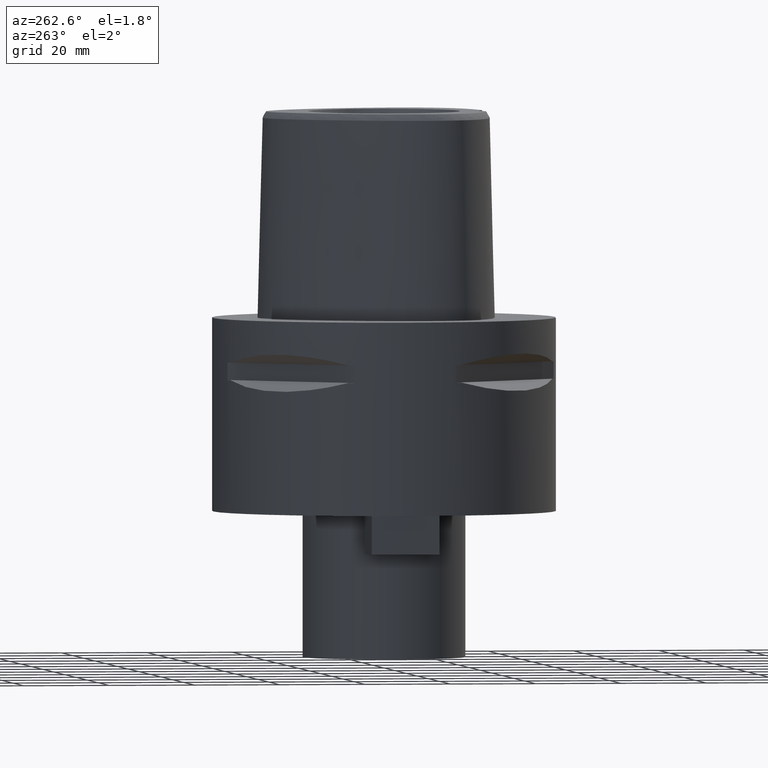
[diagram: clean part render]
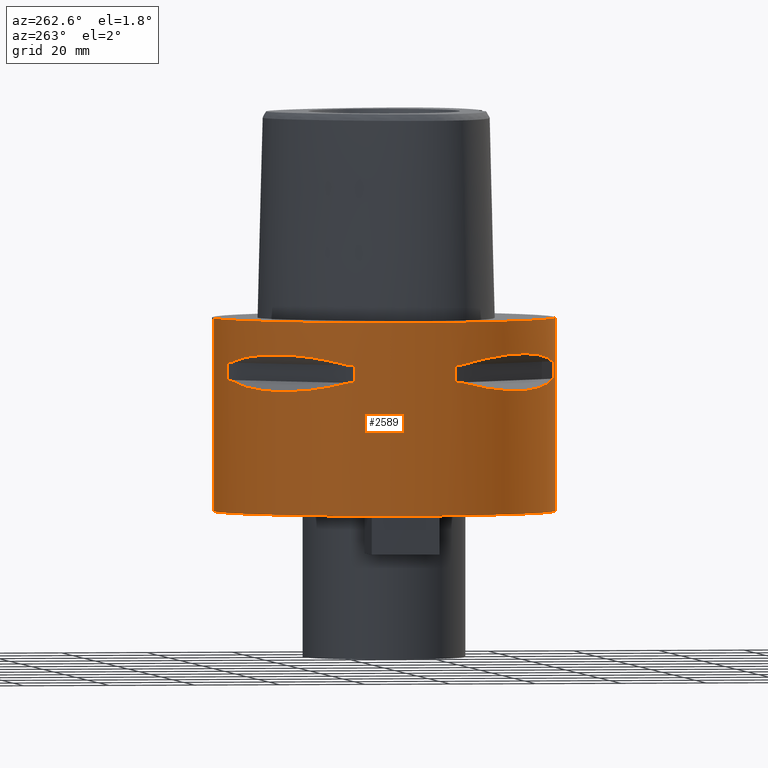
[diagram: same view with one face highlighted and labeled with its STEP entity id]
A machine part, auxiliary view. The second image highlights one B-rep face of the part: STEP entity #2589.
In plain terms, the highlighted cylindrical surface (partial cylindrical patch) has radius 40 mm, axis along (0, 0, -1).
Its self-contained STEP definition (entity closure, byte-faithful):
#299=CARTESIAN_POINT('',(0.E0,1.273020347714E-14,1.065814103640E-14));
#300=DIRECTION('',(0.E0,0.E0,-1.E0));
#301=DIRECTION('',(0.E0,-1.E0,0.E0));
#302=AXIS2_PLACEMENT_3D('',#299,#300,#301);
#403=DIRECTION('',(0.E0,0.E0,-1.E0));
#404=VECTOR('',#403,4.5E1);
#405=CARTESIAN_POINT('',(0.E0,-4.E1,0.E0));
#406=LINE('',#405,#404);
#410=DIRECTION('',(0.E0,0.E0,-1.E0));
#411=VECTOR('',#410,4.1E0);
#412=CARTESIAN_POINT('',(-1.176033600281E1,3.823211342708E1,-9.95E0));
#413=LINE('',#412,#411);
#417=CARTESIAN_POINT('',(-1.323717311056E1,3.774622163927E1,-1.405E1));
#418=CARTESIAN_POINT('',(-1.626143876435E1,3.668564587161E1,-1.485167303901E1));
#419=CARTESIAN_POINT('',(-2.171906657626E1,3.397359084062E1,-1.597254843317E1));
#420=CARTESIAN_POINT('',(-2.850324251697E1,2.850324251697E1,-1.650891631180E1));
#421=CARTESIAN_POINT('',(-3.397359084062E1,2.171906657626E1,-1.597254843317E1));
#422=CARTESIAN_POINT('',(-3.668564587161E1,1.626143876435E1,-1.485167303901E1));
#423=CARTESIAN_POINT('',(-3.774622163927E1,1.323717311056E1,-1.405E1));
#428=DIRECTION('',(0.E0,0.E0,1.E0));
#429=VECTOR('',#428,4.1E0);
#430=CARTESIAN_POINT('',(-3.823211342708E1,1.176033600281E1,-1.405E1));
#431=LINE('',#430,#429);
#435=DIRECTION('',(0.E0,0.E0,-1.E0));
#436=VECTOR('',#435,4.1E0);
#437=CARTESIAN_POINT('',(-3.823211342708E1,-1.176033600281E1,-9.95E0));
#438=LINE('',#437,#436);
#442=CARTESIAN_POINT('',(-3.774622163927E1,-1.323717311056E1,-1.405E1));
#443=CARTESIAN_POINT('',(-3.668564587161E1,-1.626143876435E1,
-1.485167303901E1));
#444=CARTESIAN_POINT('',(-3.397359084062E1,-2.171906657626E1,
-1.597254843317E1));
#445=CARTESIAN_POINT('',(-2.850324251697E1,-2.850324251697E1,
-1.650891631180E1));
#446=CARTESIAN_POINT('',(-2.171906657626E1,-3.397359084062E1,
-1.597254843317E1));
#447=CARTESIAN_POINT('',(-1.626143876435E1,-3.668564587161E1,
-1.485167303901E1));
#448=CARTESIAN_POINT('',(-1.323717311056E1,-3.774622163927E1,-1.405E1));
#453=DIRECTION('',(0.E0,0.E0,1.E0));
#454=VECTOR('',#453,4.1E0);
#455=CARTESIAN_POINT('',(-1.176033600281E1,-3.823211342708E1,-1.405E1));
#456=LINE('',#455,#454);
#460=DIRECTION('',(0.E0,0.E0,-1.E0));
#461=VECTOR('',#460,4.5E1);
#462=CARTESIAN_POINT('',(0.E0,4.E1,0.E0));
#463=LINE('',#462,#461);
#525=CARTESIAN_POINT('',(0.E0,1.273020347714E-14,-4.5E1));
#526=DIRECTION('',(0.E0,0.E0,1.E0));
#527=DIRECTION('',(0.E0,1.E0,0.E0));
#528=AXIS2_PLACEMENT_3D('',#525,#526,#527);
#1457=CARTESIAN_POINT('',(-1.323717311056E1,3.774622163927E1,
-9.950000000002E0));
#1458=CARTESIAN_POINT('',(-1.626143876435E1,3.668564587161E1,
-9.148326960991E0));
#1459=CARTESIAN_POINT('',(-2.171906657626E1,3.397359084062E1,
-8.027451566833E0));
#1460=CARTESIAN_POINT('',(-2.850324251697E1,2.850324251697E1,
-7.491083688204E0));
#1461=CARTESIAN_POINT('',(-3.397359084062E1,2.171906657626E1,
-8.027451566833E0));
#1462=CARTESIAN_POINT('',(-3.668564587161E1,1.626143876435E1,
-9.148326960991E0));
#1463=CARTESIAN_POINT('',(-3.774622163927E1,1.323717311056E1,
-9.950000000002E0));
#1468=CARTESIAN_POINT('',(0.E0,1.273020347714E-14,-9.95E0));
#1469=DIRECTION('',(0.E0,0.E0,1.E0));
#1470=DIRECTION('',(-9.436555409818E-1,3.309293277639E-1,0.E0));
#1471=AXIS2_PLACEMENT_3D('',#1468,#1469,#1470);
#1476=CARTESIAN_POINT('',(0.E0,1.273020347714E-14,-9.95E0));
#1477=DIRECTION('',(0.E0,0.E0,1.E0));
#1478=DIRECTION('',(-2.940084000703E-1,9.558028356770E-1,0.E0));
#1479=AXIS2_PLACEMENT_3D('',#1476,#1477,#1478);
#1498=CARTESIAN_POINT('',(0.E0,1.273020347714E-14,-1.405E1));
#1499=DIRECTION('',(0.E0,0.E0,-1.E0));
#1500=DIRECTION('',(-9.558028356770E-1,2.940084000703E-1,0.E0));
#1501=AXIS2_PLACEMENT_3D('',#1498,#1499,#1500);
#1506=CARTESIAN_POINT('',(0.E0,1.273020347714E-14,-1.405E1));
#1507=DIRECTION('',(0.E0,0.E0,-1.E0));
#1508=DIRECTION('',(-3.309293277639E-1,9.436555409818E-1,0.E0));
#1509=AXIS2_PLACEMENT_3D('',#1506,#1507,#1508);
#1528=CARTESIAN_POINT('',(-3.774622163927E1,-1.323717311056E1,
-9.950000000002E0));
#1529=CARTESIAN_POINT('',(-3.668564587161E1,-1.626143876435E1,
-9.148326960991E0));
#1530=CARTESIAN_POINT('',(-3.397359084062E1,-2.171906657626E1,
-8.027451566833E0));
#1531=CARTESIAN_POINT('',(-2.850324251697E1,-2.850324251697E1,
-7.491083688204E0));
#1532=CARTESIAN_POINT('',(-2.171906657626E1,-3.397359084062E1,
-8.027451566833E0));
#1533=CARTESIAN_POINT('',(-1.626143876435E1,-3.668564587161E1,
-9.148326960991E0));
#1534=CARTESIAN_POINT('',(-1.323717311056E1,-3.774622163927E1,
-9.950000000002E0));
#1539=CARTESIAN_POINT('',(0.E0,1.273020347714E-14,-9.95E0));
#1540=DIRECTION('',(0.E0,0.E0,1.E0));
#1541=DIRECTION('',(-3.309293277639E-1,-9.436555409818E-1,0.E0));
#1542=AXIS2_PLACEMENT_3D('',#1539,#1540,#1541);
#1547=CARTESIAN_POINT('',(0.E0,1.273020347714E-14,-9.95E0));
#1548=DIRECTION('',(0.E0,0.E0,1.E0));
#1549=DIRECTION('',(-9.558028356770E-1,-2.940084000703E-1,0.E0));
#1550=AXIS2_PLACEMENT_3D('',#1547,#1548,#1549);
#1569=CARTESIAN_POINT('',(0.E0,1.273020347714E-14,-1.405E1));
#1570=DIRECTION('',(0.E0,0.E0,-1.E0));
#1571=DIRECTION('',(-2.940084000703E-1,-9.558028356770E-1,0.E0));
#1572=AXIS2_PLACEMENT_3D('',#1569,#1570,#1571);
#1577=CARTESIAN_POINT('',(0.E0,1.273020347714E-14,-1.405E1));
#1578=DIRECTION('',(0.E0,0.E0,-1.E0));
#1579=DIRECTION('',(-9.436555409818E-1,-3.309293277639E-1,0.E0));
#1580=AXIS2_PLACEMENT_3D('',#1577,#1578,#1579);
#1621=CARTESIAN_POINT('',(0.E0,-4.E1,1.065814103640E-14));
#1622=CARTESIAN_POINT('',(0.E0,4.E1,1.065814103640E-14));
#1623=VERTEX_POINT('',#1621);
#1624=VERTEX_POINT('',#1622);
#1625=CARTESIAN_POINT('',(0.E0,4.E1,-4.5E1));
#1626=VERTEX_POINT('',#1625);
#1627=CARTESIAN_POINT('',(0.E0,-4.E1,-4.5E1));
#1628=VERTEX_POINT('',#1627);
#1629=VERTEX_POINT('',#1457);
#1630=VERTEX_POINT('',#1463);
#1631=CARTESIAN_POINT('',(-1.176033600281E1,3.823211342708E1,-9.95E0));
#1632=VERTEX_POINT('',#1631);
#1633=CARTESIAN_POINT('',(-1.176033600281E1,3.823211342708E1,-1.405E1));
#1634=VERTEX_POINT('',#1633);
#1635=CARTESIAN_POINT('',(-1.323717311056E1,3.774622163927E1,-1.405E1));
#1636=VERTEX_POINT('',#1635);
#1637=VERTEX_POINT('',#423);
#1638=CARTESIAN_POINT('',(-3.823211342708E1,1.176033600281E1,-1.405E1));
#1639=VERTEX_POINT('',#1638);
#1640=CARTESIAN_POINT('',(-3.823211342708E1,1.176033600281E1,-9.95E0));
#1641=VERTEX_POINT('',#1640);
#1642=VERTEX_POINT('',#1528);
#1643=VERTEX_POINT('',#1534);
#1644=CARTESIAN_POINT('',(-3.823211342708E1,-1.176033600281E1,-9.95E0));
#1645=VERTEX_POINT('',#1644);
#1646=CARTESIAN_POINT('',(-3.823211342708E1,-1.176033600281E1,-1.405E1));
#1647=VERTEX_POINT('',#1646);
#1648=CARTESIAN_POINT('',(-3.774622163927E1,-1.323717311056E1,-1.405E1));
#1649=VERTEX_POINT('',#1648);
#1650=VERTEX_POINT('',#448);
#1651=CARTESIAN_POINT('',(-1.176033600281E1,-3.823211342708E1,-1.405E1));
#1652=VERTEX_POINT('',#1651);
#1653=CARTESIAN_POINT('',(-1.176033600281E1,-3.823211342708E1,-9.95E0));
#1654=VERTEX_POINT('',#1653);
#2539=CARTESIAN_POINT('',(0.E0,1.273020347714E-14,3.95E0));
#2540=DIRECTION('',(0.E0,0.E0,-1.E0));
#2541=DIRECTION('',(0.E0,-1.E0,0.E0));
#2542=AXIS2_PLACEMENT_3D('',#2539,#2540,#2541);
#2543=CYLINDRICAL_SURFACE('',#2542,4.E1);
#2545=ORIENTED_EDGE('',*,*,#2544,.F.);
#2546=ORIENTED_EDGE('',*,*,#2527,.F.);
#2548=ORIENTED_EDGE('',*,*,#2547,.T.);
#2550=ORIENTED_EDGE('',*,*,#2549,.F.);
#2551=EDGE_LOOP('',(#2545,#2546,#2548,#2550));
#2552=FACE_OUTER_BOUND('',#2551,.F.);
#2554=ORIENTED_EDGE('',*,*,#2553,.F.);
#2556=ORIENTED_EDGE('',*,*,#2555,.F.);
#2558=ORIENTED_EDGE('',*,*,#2557,.T.);
#2560=ORIENTED_EDGE('',*,*,#2559,.F.);
#2562=ORIENTED_EDGE('',*,*,#2561,.T.);
#2564=ORIENTED_EDGE('',*,*,#2563,.F.);
#2566=ORIENTED_EDGE('',*,*,#2565,.T.);
#2568=ORIENTED_EDGE('',*,*,#2567,.F.);
#2569=EDGE_LOOP('',(#2554,#2556,#2558,#2560,#2562,#2564,#2566,#2568));
#2570=FACE_BOUND('',#2569,.F.);
#2572=ORIENTED_EDGE('',*,*,#2571,.F.);
#2574=ORIENTED_EDGE('',*,*,#2573,.F.);
#2576=ORIENTED_EDGE('',*,*,#2575,.T.);
#2578=ORIENTED_EDGE('',*,*,#2577,.F.);
#2580=ORIENTED_EDGE('',*,*,#2579,.T.);
#2582=ORIENTED_EDGE('',*,*,#2581,.F.);
#2584=ORIENTED_EDGE('',*,*,#2583,.T.);
#2586=ORIENTED_EDGE('',*,*,#2585,.F.);
#2587=EDGE_LOOP('',(#2572,#2574,#2576,#2578,#2580,#2582,#2584,#2586));
#2588=FACE_BOUND('',#2587,.F.);
#303=CIRCLE('',#302,4.E1);
#424=B_SPLINE_CURVE_WITH_KNOTS('',3,(#417,#418,#419,#420,#421,#422,#423),
.UNSPECIFIED.,.F.,.F.,(4,1,1,1,4),(0.E0,2.5E-1,5.E-1,7.5E-1,1.E0),
.UNSPECIFIED.);
#449=B_SPLINE_CURVE_WITH_KNOTS('',3,(#442,#443,#444,#445,#446,#447,#448),
.UNSPECIFIED.,.F.,.F.,(4,1,1,1,4),(0.E0,2.5E-1,5.E-1,7.5E-1,1.E0),
.UNSPECIFIED.);
#529=CIRCLE('',#528,4.E1);
#1464=B_SPLINE_CURVE_WITH_KNOTS('',3,(#1457,#1458,#1459,#1460,#1461,#1462,
#1463),.UNSPECIFIED.,.F.,.F.,(4,1,1,1,4),(0.E0,2.5E-1,5.E-1,7.5E-1,1.E0),
.UNSPECIFIED.);
#1472=CIRCLE('',#1471,4.E1);
#1480=CIRCLE('',#1479,4.E1);
#1502=CIRCLE('',#1501,4.E1);
#1510=CIRCLE('',#1509,4.E1);
#1535=B_SPLINE_CURVE_WITH_KNOTS('',3,(#1528,#1529,#1530,#1531,#1532,#1533,
#1534),.UNSPECIFIED.,.F.,.F.,(4,1,1,1,4),(0.E0,2.5E-1,5.E-1,7.5E-1,1.E0),
.UNSPECIFIED.);
#1543=CIRCLE('',#1542,4.E1);
#1551=CIRCLE('',#1550,4.E1);
#1573=CIRCLE('',#1572,4.E1);
#1581=CIRCLE('',#1580,4.E1);
#2527=EDGE_CURVE('',#1623,#1624,#303,.T.);
#2544=EDGE_CURVE('',#1624,#1626,#463,.T.);
#2547=EDGE_CURVE('',#1623,#1628,#406,.T.);
#2549=EDGE_CURVE('',#1626,#1628,#529,.T.);
#2553=EDGE_CURVE('',#1629,#1630,#1464,.T.);
#2555=EDGE_CURVE('',#1632,#1629,#1480,.T.);
#2557=EDGE_CURVE('',#1632,#1634,#413,.T.);
#2559=EDGE_CURVE('',#1636,#1634,#1510,.T.);
#2561=EDGE_CURVE('',#1636,#1637,#424,.T.);
#2563=EDGE_CURVE('',#1639,#1637,#1502,.T.);
#2565=EDGE_CURVE('',#1639,#1641,#431,.T.);
#2567=EDGE_CURVE('',#1630,#1641,#1472,.T.);
#2571=EDGE_CURVE('',#1642,#1643,#1535,.T.);
#2573=EDGE_CURVE('',#1645,#1642,#1551,.T.);
#2575=EDGE_CURVE('',#1645,#1647,#438,.T.);
#2577=EDGE_CURVE('',#1649,#1647,#1581,.T.);
#2579=EDGE_CURVE('',#1649,#1650,#449,.T.);
#2581=EDGE_CURVE('',#1652,#1650,#1573,.T.);
#2583=EDGE_CURVE('',#1652,#1654,#456,.T.);
#2585=EDGE_CURVE('',#1643,#1654,#1543,.T.);
#2589=ADVANCED_FACE('',(#2552,#2570,#2588),#2543,.T.);